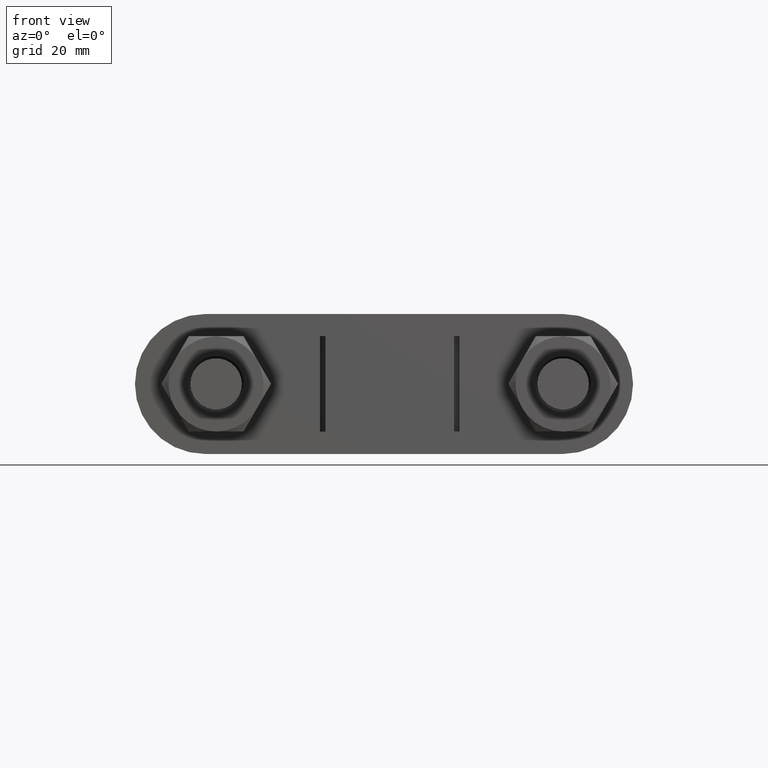
[diagram: clean part render]
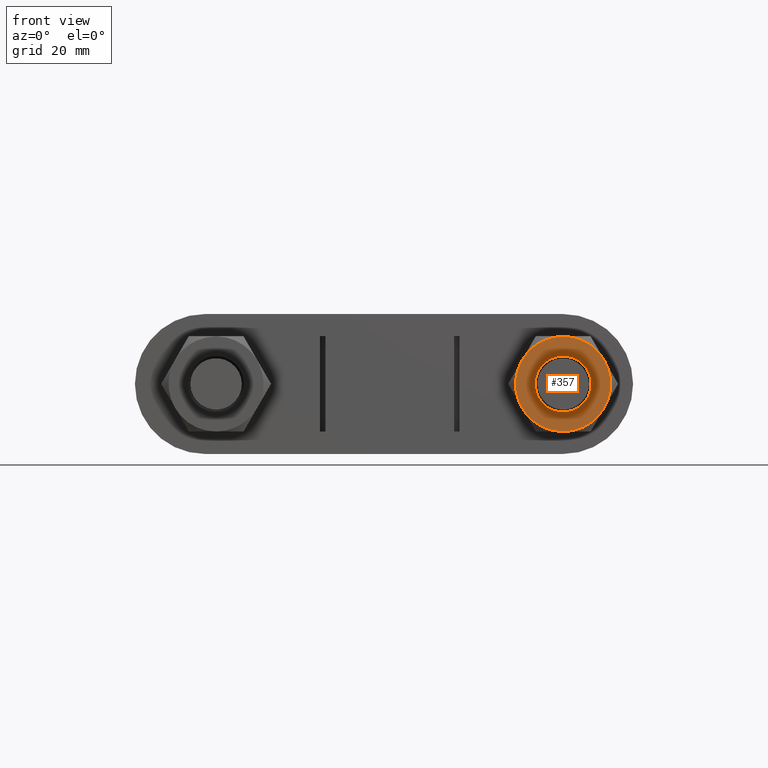
[diagram: same view with one face highlighted and labeled with its STEP entity id]
A machine part, front view. The second image highlights one B-rep face of the part: STEP entity #357.
In plain terms, the highlighted planar face has unit normal (0, 1, 0).
Its self-contained STEP definition (entity closure, byte-faithful):
#357 = ADVANCED_FACE( '', ( #583, #584 ), #585, .F. );
#583 = FACE_OUTER_BOUND( '', #1511, .T. );
#584 = FACE_BOUND( '', #1512, .T. );
#585 = PLANE( '', #1513 );
#1511 = EDGE_LOOP( '', ( #2215, #2216, #2217, #2218, #2219, #2220 ) );
#1512 = EDGE_LOOP( '', ( #2221 ) );
#1513 = AXIS2_PLACEMENT_3D( '', #2222, #2223, #2224 );
#2215 = ORIENTED_EDGE( '', *, *, #2571, .F. );
#2216 = ORIENTED_EDGE( '', *, *, #2572, .F. );
#2217 = ORIENTED_EDGE( '', *, *, #2573, .F. );
#2218 = ORIENTED_EDGE( '', *, *, #2574, .F. );
#2219 = ORIENTED_EDGE( '', *, *, #2569, .F. );
#2220 = ORIENTED_EDGE( '', *, *, #2575, .F. );
#2221 = ORIENTED_EDGE( '', *, *, #2576, .T. );
#2222 = CARTESIAN_POINT( '', ( 31.0000000000000, 17.0000000000008, 3.12274620224721E-015 ) );
#2223 = DIRECTION( '', ( 1.22460635382238E-016, 1.00000000000000, 1.83690953073357E-016 ) );
#2224 = DIRECTION( '', ( -0.866025409460596, 1.97899496630447E-016, -0.499999990168607 ) );
#2569 = EDGE_CURVE( '', #2930, #2932, #2933, .T. );
#2571 = EDGE_CURVE( '', #2935, #2936, #2937, .T. );
#2572 = EDGE_CURVE( '', #2938, #2935, #2939, .T. );
#2573 = EDGE_CURVE( '', #2940, #2938, #2941, .T. );
#2574 = EDGE_CURVE( '', #2932, #2940, #2942, .T. );
#2575 = EDGE_CURVE( '', #2936, #2930, #2943, .T. );
#2576 = EDGE_CURVE( '', #2944, #2944, #2945, .T. );
#2930 = VERTEX_POINT( '', #3740 );
#2932 = VERTEX_POINT( '', #3747 );
#2933 = CIRCLE( '', #3748, 8.49999999999948 );
#2935 = VERTEX_POINT( '', #3757 );
#2936 = VERTEX_POINT( '', #3758 );
#2937 = CIRCLE( '', #3759, 8.49999999999948 );
#2938 = VERTEX_POINT( '', #3760 );
#2939 = CIRCLE( '', #3761, 8.49999999999948 );
#2940 = VERTEX_POINT( '', #3762 );
#2941 = CIRCLE( '', #3763, 8.49999999999948 );
#2942 = CIRCLE( '', #3764, 8.49999999999948 );
#2943 = CIRCLE( '', #3765, 8.49999999999948 );
#2944 = VERTEX_POINT( '', #3766 );
#2945 = CIRCLE( '', #3767, 4.99999999999969 );
#3740 = CARTESIAN_POINT( '', ( 38.3612159804146, 17.0000000000008, 4.24999991643290 ) );
#3747 = CARTESIAN_POINT( '', ( 38.3612158839196, 17.0000000000008, -4.25000008356592 ) );
#3748 = AXIS2_PLACEMENT_3D( '', #4179, #4180, #4181 );
#3757 = CARTESIAN_POINT( '', ( 23.6387841160804, 17.0000000000008, 4.25000008356593 ) );
#3758 = CARTESIAN_POINT( '', ( 31.0000000964951, 17.0000000000008, 8.49999999999883 ) );
#3759 = AXIS2_PLACEMENT_3D( '', #4182, #4183, #4184 );
#3760 = CARTESIAN_POINT( '', ( 23.6387840195854, 17.0000000000008, -4.24999991643290 ) );
#3761 = AXIS2_PLACEMENT_3D( '', #4185, #4186, #4187 );
#3762 = CARTESIAN_POINT( '', ( 30.9999999035049, 17.0000000000008, -8.49999999999882 ) );
#3763 = AXIS2_PLACEMENT_3D( '', #4188, #4189, #4190 );
#3764 = AXIS2_PLACEMENT_3D( '', #4191, #4192, #4193 );
#3765 = AXIS2_PLACEMENT_3D( '', #4194, #4195, #4196 );
#3766 = CARTESIAN_POINT( '', ( 26.6698729526973, 17.0000000000008, -2.49999995084288 ) );
#3767 = AXIS2_PLACEMENT_3D( '', #4197, #4198, #4199 );
#4179 = CARTESIAN_POINT( '', ( 31.0000000000000, 17.0000000000008, 3.12274620224721E-015 ) );
#4180 = DIRECTION( '', ( 1.22460635382238E-016, 1.00000000000000, 1.83690953073357E-016 ) );
#4181 = DIRECTION( '', ( -0.866025409460596, 1.97899496630447E-016, -0.499999990168607 ) );
#4182 = CARTESIAN_POINT( '', ( 31.0000000000000, 17.0000000000008, 3.12274620224721E-015 ) );
#4183 = DIRECTION( '', ( 1.22460635382238E-016, 1.00000000000000, 1.83690953073357E-016 ) );
#4184 = DIRECTION( '', ( -0.866025409460596, 1.97899496630447E-016, -0.499999990168607 ) );
#4185 = CARTESIAN_POINT( '', ( 31.0000000000000, 17.0000000000008, 3.12274620224721E-015 ) );
#4186 = DIRECTION( '', ( 1.22460635382238E-016, 1.00000000000000, 1.83690953073357E-016 ) );
#4187 = DIRECTION( '', ( -0.866025409460596, 1.97899496630447E-016, -0.499999990168607 ) );
#4188 = CARTESIAN_POINT( '', ( 31.0000000000000, 17.0000000000008, 3.12274620224721E-015 ) );
#4189 = DIRECTION( '', ( 1.22460635382238E-016, 1.00000000000000, 1.83690953073357E-016 ) );
#4190 = DIRECTION( '', ( -0.866025409460596, 1.97899496630447E-016, -0.499999990168607 ) );
#4191 = CARTESIAN_POINT( '', ( 31.0000000000000, 17.0000000000008, 3.12274620224721E-015 ) );
#4192 = DIRECTION( '', ( 1.22460635382238E-016, 1.00000000000000, 1.83690953073357E-016 ) );
#4193 = DIRECTION( '', ( -0.866025409460596, 1.97899496630447E-016, -0.499999990168607 ) );
#4194 = CARTESIAN_POINT( '', ( 31.0000000000000, 17.0000000000008, 3.12274620224721E-015 ) );
#4195 = DIRECTION( '', ( 1.22460635382238E-016, 1.00000000000000, 1.83690953073357E-016 ) );
#4196 = DIRECTION( '', ( -0.866025409460596, 1.97899496630447E-016, -0.499999990168607 ) );
#4197 = CARTESIAN_POINT( '', ( 31.0000000000000, 17.0000000000008, 3.12274620224721E-015 ) );
#4198 = DIRECTION( '', ( 1.22460635382238E-016, 1.00000000000000, 1.83690953073357E-016 ) );
#4199 = DIRECTION( '', ( -0.866025409460596, 1.97899496630447E-016, -0.499999990168607 ) );